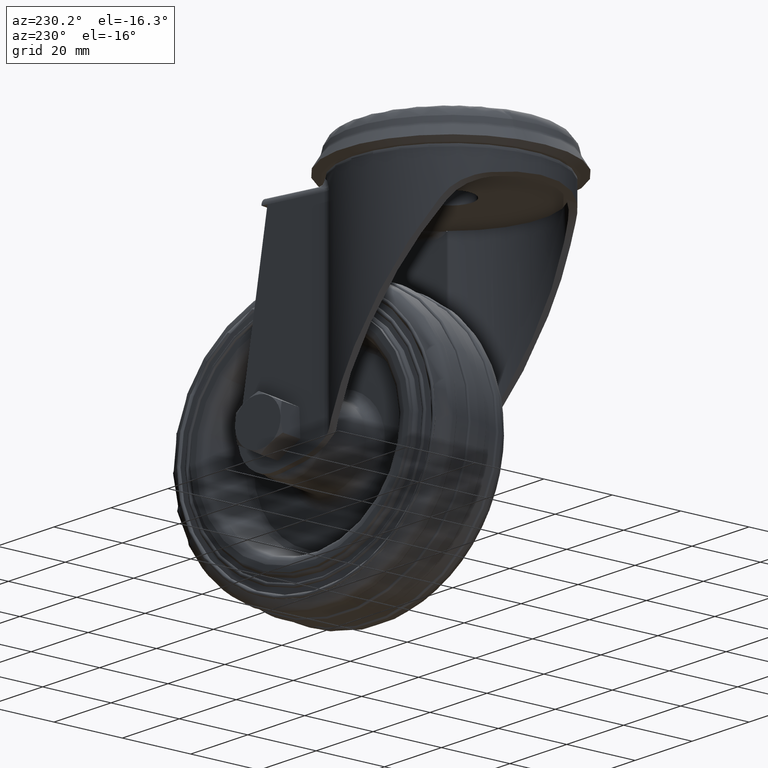
[diagram: clean part render]
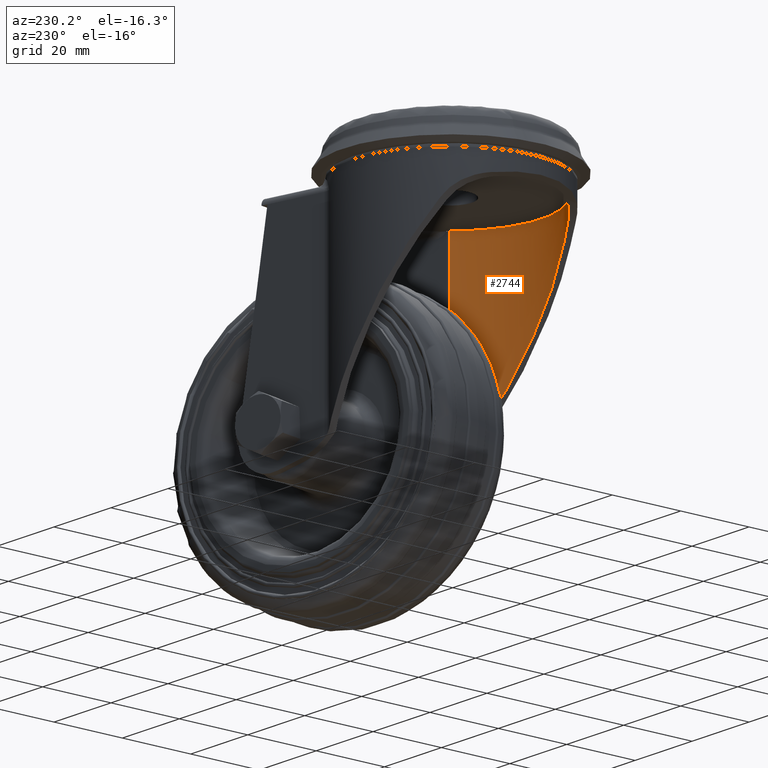
[diagram: same view with one face highlighted and labeled with its STEP entity id]
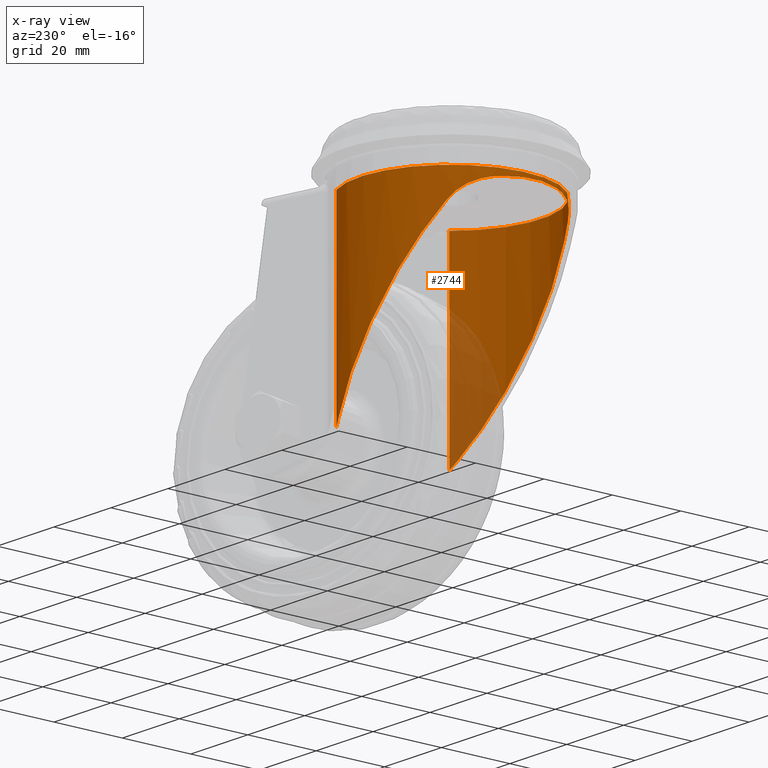
[diagram: x-ray of the same camera — body ghosted, the highlighted face saturated]
A machine part, auxiliary view. The second image highlights one B-rep face of the part: STEP entity #2744.
The next image is the same camera in x-ray: the body ghosted, the highlighted face saturated — about 15% of this face is hidden behind the body in this view.
In plain terms, the highlighted cylindrical surface (partial cylindrical patch) has radius 26.5 mm, axis along (0, 0, -1).
Its self-contained STEP definition (entity closure, byte-faithful):
#38=ELLIPSE('',#3102,47.6811957854603,26.4999994642004);
#39=ELLIPSE('',#3103,27.6766541846437,26.4999994641917);
#40=ELLIPSE('',#3104,47.6811957854601,26.4999994642001);
#79=B_SPLINE_CURVE_WITH_KNOTS('',3,(#10448,#10449,#10450,#10451),
 .UNSPECIFIED.,.F.,.F.,(4,4),(0.,0.0500992183660232),.UNSPECIFIED.);
#80=B_SPLINE_CURVE_WITH_KNOTS('',3,(#10455,#10456,#10457,#10458),
 .UNSPECIFIED.,.F.,.F.,(4,4),(0.,1.),.UNSPECIFIED.);
#81=B_SPLINE_CURVE_WITH_KNOTS('',3,(#10462,#10463,#10464,#10465,#10466,
#10467,#10468,#10469,#10470,#10471,#10472,#10473),.UNSPECIFIED.,.F.,.F.,
(4,2,2,2,2,4),(-2.15646236733416,-1.88928388771487,-1.56260651561279,-1.23592914351072,
-0.92694685763304,-0.75957713628714),.UNSPECIFIED.);
#82=B_SPLINE_CURVE_WITH_KNOTS('',3,(#10477,#10478,#10479,#10480,#10481,
#10482,#10483,#10484,#10485,#10486,#10487,#10488),.UNSPECIFIED.,.F.,.F.,
(4,2,2,2,2,4),(-5.91803849160039,-5.75066877025449,-5.44168648437681,-5.11500911227474,
-4.78833174017266,-4.52115326055337),.UNSPECIFIED.);
#83=B_SPLINE_CURVE_WITH_KNOTS('',3,(#10492,#10493,#10494,#10495),
 .UNSPECIFIED.,.F.,.F.,(4,4),(0.,1.),.UNSPECIFIED.);
#84=B_SPLINE_CURVE_WITH_KNOTS('',3,(#10498,#10499,#10500,#10501,#10502,
#10503,#10504,#10505,#10506,#10507),.UNSPECIFIED.,.F.,.F.,(4,3,3,4),(0.922666587883633,
0.977899025693834,0.988705372221917,0.99951171875),.UNSPECIFIED.);
#253=LINE('',#10453,#319);
#254=LINE('',#10497,#320);
#319=VECTOR('',#3817,55.9669217424189);
#320=VECTOR('',#3824,55.9669217424188);
#715=FACE_OUTER_BOUND('',#983,.T.);
#983=EDGE_LOOP('',(#2358,#2359,#2360,#2361,#2362,#2363,#2364,#2365,#2366,
#2367,#2368,#2369));
#1202=CIRCLE('',#3101,26.4999994642);
#1427=VERTEX_POINT('',#10444);
#1428=VERTEX_POINT('',#10445);
#1429=VERTEX_POINT('',#10447);
#1430=VERTEX_POINT('',#10452);
#1431=VERTEX_POINT('',#10454);
#1432=VERTEX_POINT('',#10459);
#1433=VERTEX_POINT('',#10461);
#1434=VERTEX_POINT('',#10474);
#1435=VERTEX_POINT('',#10476);
#1436=VERTEX_POINT('',#10489);
#1437=VERTEX_POINT('',#10491);
#1438=VERTEX_POINT('',#10496);
#1750=EDGE_CURVE('',#1427,#1428,#1202,.T.);
#1751=EDGE_CURVE('',#1429,#1427,#79,.T.);
#1752=EDGE_CURVE('',#1430,#1429,#253,.T.);
#1753=EDGE_CURVE('',#1431,#1430,#80,.T.);
#1754=EDGE_CURVE('',#1432,#1431,#38,.T.);
#1755=EDGE_CURVE('',#1433,#1432,#81,.T.);
#1756=EDGE_CURVE('',#1434,#1433,#39,.T.);
#1757=EDGE_CURVE('',#1435,#1434,#82,.T.);
#1758=EDGE_CURVE('',#1436,#1435,#40,.T.);
#1759=EDGE_CURVE('',#1437,#1436,#83,.T.);
#1760=EDGE_CURVE('',#1438,#1437,#254,.T.);
#1761=EDGE_CURVE('',#1428,#1438,#84,.T.);
#2358=ORIENTED_EDGE('',*,*,#1750,.F.);
#2359=ORIENTED_EDGE('',*,*,#1751,.F.);
#2360=ORIENTED_EDGE('',*,*,#1752,.F.);
#2361=ORIENTED_EDGE('',*,*,#1753,.F.);
#2362=ORIENTED_EDGE('',*,*,#1754,.F.);
#2363=ORIENTED_EDGE('',*,*,#1755,.F.);
#2364=ORIENTED_EDGE('',*,*,#1756,.F.);
#2365=ORIENTED_EDGE('',*,*,#1757,.F.);
#2366=ORIENTED_EDGE('',*,*,#1758,.F.);
#2367=ORIENTED_EDGE('',*,*,#1759,.F.);
#2368=ORIENTED_EDGE('',*,*,#1760,.F.);
#2369=ORIENTED_EDGE('',*,*,#1761,.F.);
#2579=CYLINDRICAL_SURFACE('',#3100,26.4999994642);
#2744=ADVANCED_FACE('',(#715),#2579,.F.);
#3100=AXIS2_PLACEMENT_3D('',#10443,#3813,#3814);
#3101=AXIS2_PLACEMENT_3D('',#10446,#3815,#3816);
#3102=AXIS2_PLACEMENT_3D('',#10460,#3818,#3819);
#3103=AXIS2_PLACEMENT_3D('',#10475,#3820,#3821);
#3104=AXIS2_PLACEMENT_3D('',#10490,#3822,#3823);
#3813=DIRECTION('center_axis',(0.,0.,-1.));
#3814=DIRECTION('ref_axis',(-1.,0.,0.));
#3815=DIRECTION('center_axis',(0.,0.,-1.));
#3816=DIRECTION('ref_axis',(1.,0.,0.));
#3817=DIRECTION('',(0.,0.,1.));
#3818=DIRECTION('center_axis',(0.831332994990098,2.71399532598092E-15,0.555774640875952));
#3819=DIRECTION('ref_axis',(0.555774640875952,1.5961871924627E-15,-0.831332994990098));
#3820=DIRECTION('center_axis',(0.288480871590973,5.01568781663132E-16,0.957485658757411));
#3821=DIRECTION('ref_axis',(0.95748565875741,1.46308184703166E-12,-0.288480871590973));
#3822=DIRECTION('center_axis',(0.831332994990098,-2.71399532598092E-15,
0.555774640875952));
#3823=DIRECTION('ref_axis',(0.555774640875952,-1.47357072839061E-15,-0.831332994990098));
#3824=DIRECTION('',(0.,0.,-1.));
#10443=CARTESIAN_POINT('Origin',(0.,2.577197E-15,-7.69733438144358));
#10444=CARTESIAN_POINT('',(16.5241634654908,-20.7171915026868,-14.3998696058235));
#10445=CARTESIAN_POINT('',(16.5241438967726,20.7172130854364,-14.3998724098079));
#10446=CARTESIAN_POINT('Origin',(0.,2.577197E-15,-14.3998690631));
#10447=CARTESIAN_POINT('',(16.5229213903826,-20.7181813953309,-14.4923896417105));
#10448=CARTESIAN_POINT('Ctrl Pts',(16.5229213903826,-20.7181813953309,-14.4923896417105));
#10449=CARTESIAN_POINT('Ctrl Pts',(16.5229213901525,-20.7181813955144,-14.461465063508));
#10450=CARTESIAN_POINT('Ctrl Pts',(16.5233331623613,-20.7178535703989,-14.4306243670454));
#10451=CARTESIAN_POINT('Ctrl Pts',(16.5241636220439,-20.7171917445369,-14.3998706912706));
#10452=CARTESIAN_POINT('',(16.5229213903825,-20.7181813953309,-70.4593113841294));
#10453=CARTESIAN_POINT('',(16.5229213903825,-20.7181813953309,-7.69733438144358));
#10454=CARTESIAN_POINT('',(15.253446233664,-21.6698488596326,-68.6212600026259));
#10455=CARTESIAN_POINT('Ctrl Pts',(15.253446233664,-21.6698488596326,-68.6212600026259));
#10456=CARTESIAN_POINT('Ctrl Pts',(15.6486731721109,-21.3916478950229,-69.2855767597826));
#10457=CARTESIAN_POINT('Ctrl Pts',(16.076225078104,-21.0744254069224,-69.8979956031335));
#10458=CARTESIAN_POINT('Ctrl Pts',(16.5229213903825,-20.7181813953309,-70.4593113841294));
#10459=CARTESIAN_POINT('',(-15.4753899645008,-21.5119101208894,-22.656774489365));
#10460=CARTESIAN_POINT('Origin',(-6.66133814775094E-15,4.48530101948563E-13,
-45.8050100179804));
#10461=CARTESIAN_POINT('',(-23.6189054400678,-12.0165418243241,-16.2924136985072));
#10462=CARTESIAN_POINT('Ctrl Pts',(-23.6189054400678,-12.0165418243241,
-16.2924136985072));
#10463=CARTESIAN_POINT('Ctrl Pts',(-23.2014317499394,-12.8370999977998,
-16.4181943542205));
#10464=CARTESIAN_POINT('Ctrl Pts',(-22.7498507803152,-13.6179843451767,
-16.5753374289968));
#10465=CARTESIAN_POINT('Ctrl Pts',(-21.7039628575115,-15.2419497058569,
-17.0081797026268));
#10466=CARTESIAN_POINT('Ctrl Pts',(-21.0244195722926,-16.169188220335,-17.3351305396844));
#10467=CARTESIAN_POINT('Ctrl Pts',(-19.6066279054099,-17.8619426347381,
-18.1984235827901));
#10468=CARTESIAN_POINT('Ctrl Pts',(-18.8706216384464,-18.6274451637531,
-18.7384688191223));
#10469=CARTESIAN_POINT('Ctrl Pts',(-17.580965885774,-19.8470151288117,-19.8956327054135));
#10470=CARTESIAN_POINT('Ctrl Pts',(-16.9495228176526,-20.3840557498148,
-20.5646329529055));
#10471=CARTESIAN_POINT('Ctrl Pts',(-16.0535704065714,-21.0877471100496,
-21.7461081158461));
#10472=CARTESIAN_POINT('Ctrl Pts',(-15.753406414224,-21.3119086820663,-22.1894708509994));
#10473=CARTESIAN_POINT('Ctrl Pts',(-15.4753899645008,-21.5119101208894,
-22.656774489365));
#10474=CARTESIAN_POINT('',(-23.6189054400678,12.0165418243242,-16.2924136985072));
#10475=CARTESIAN_POINT('Origin',(-1.53033141714332E-11,3.45057316053499E-12,
-23.408554149335));
#10476=CARTESIAN_POINT('',(-15.4753899645008,21.5119101208895,-22.656774489365));
#10477=CARTESIAN_POINT('Ctrl Pts',(-15.4753899645008,21.5119101208894,-22.656774489365));
#10478=CARTESIAN_POINT('Ctrl Pts',(-15.753406414224,21.3119086820663,-22.1894708509994));
#10479=CARTESIAN_POINT('Ctrl Pts',(-16.0535704065714,21.0877471100496,-21.7461081158461));
#10480=CARTESIAN_POINT('Ctrl Pts',(-16.9495228176526,20.3840557498148,-20.5646329529055));
#10481=CARTESIAN_POINT('Ctrl Pts',(-17.580965885774,19.8470151288117,-19.8956327054135));
#10482=CARTESIAN_POINT('Ctrl Pts',(-18.8706216384464,18.6274451637531,-18.7384688191223));
#10483=CARTESIAN_POINT('Ctrl Pts',(-19.6066279054099,17.8619426347381,-18.1984235827901));
#10484=CARTESIAN_POINT('Ctrl Pts',(-21.0244195722926,16.169188220335,-17.3351305396844));
#10485=CARTESIAN_POINT('Ctrl Pts',(-21.7039628575115,15.2419497058568,-17.0081797026268));
#10486=CARTESIAN_POINT('Ctrl Pts',(-22.7498507803152,13.6179843451767,-16.5753374289968));
#10487=CARTESIAN_POINT('Ctrl Pts',(-23.2014317499393,12.8370999977998,-16.4181943542205));
#10488=CARTESIAN_POINT('Ctrl Pts',(-23.6189054400678,12.0165418243242,-16.2924136985072));
#10489=CARTESIAN_POINT('',(15.253446233664,21.6698488596325,-68.6212600026259));
#10490=CARTESIAN_POINT('Origin',(-1.55431223447522E-14,-1.73194791841524E-13,
-45.8050100179804));
#10491=CARTESIAN_POINT('',(16.5229213903825,20.7181813953309,-70.4593113841294));
#10492=CARTESIAN_POINT('Ctrl Pts',(16.5229213903825,20.7181813953309,-70.4593113841294));
#10493=CARTESIAN_POINT('Ctrl Pts',(16.0762250781039,21.0744254069224,-69.8979956031335));
#10494=CARTESIAN_POINT('Ctrl Pts',(15.6486731721108,21.391647895023,-69.2855767597825));
#10495=CARTESIAN_POINT('Ctrl Pts',(15.253446233664,21.6698488596325,-68.6212600026259));
#10496=CARTESIAN_POINT('',(16.5229213903826,20.7181813953309,-14.4923896417106));
#10497=CARTESIAN_POINT('',(16.5229213903826,20.7181813953309,-7.69733438144358));
#10498=CARTESIAN_POINT('Ctrl Pts',(16.5241438967726,20.7172130854364,-14.3998724098079));
#10499=CARTESIAN_POINT('Ctrl Pts',(16.5230694686351,20.7180647970638,-14.4402683208202));
#10500=CARTESIAN_POINT('Ctrl Pts',(16.522979751458,20.7181352333801,-14.4676084519925));
#10501=CARTESIAN_POINT('Ctrl Pts',(16.5229372585524,20.7181688449269,-14.4817902846925));
#10502=CARTESIAN_POINT('Ctrl Pts',(16.522928944723,20.7181754210991,-14.4845649910903));
#10503=CARTESIAN_POINT('Ctrl Pts',(16.5229253018549,20.7181783020117,-14.4868361054989));
#10504=CARTESIAN_POINT('Ctrl Pts',(16.5229245596487,20.7181788813492,-14.4886029079512));
#10505=CARTESIAN_POINT('Ctrl Pts',(16.5229238174424,20.7181794606866,-14.4903697104034));
#10506=CARTESIAN_POINT('Ctrl Pts',(16.5229260854006,20.7181776510151,-14.4916321949664));
#10507=CARTESIAN_POINT('Ctrl Pts',(16.5229213903826,20.7181813953309,-14.4923896417106));